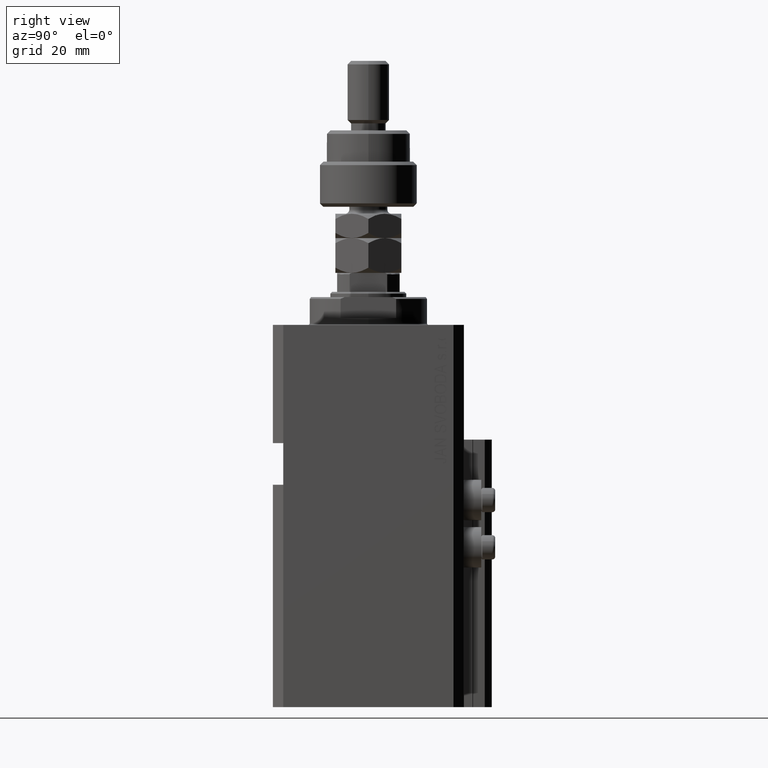
[diagram: clean part render]
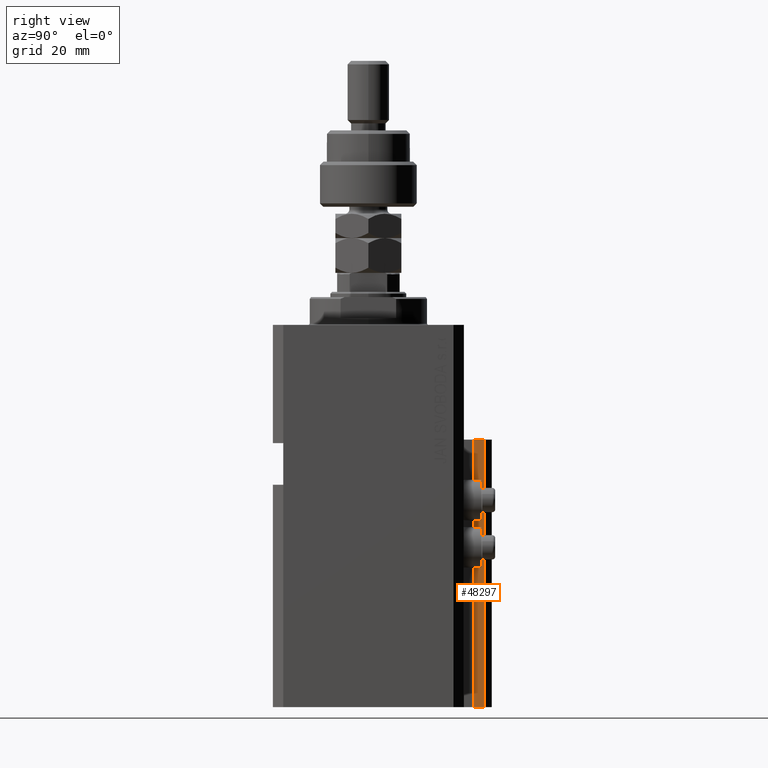
[diagram: same view with one face highlighted and labeled with its STEP entity id]
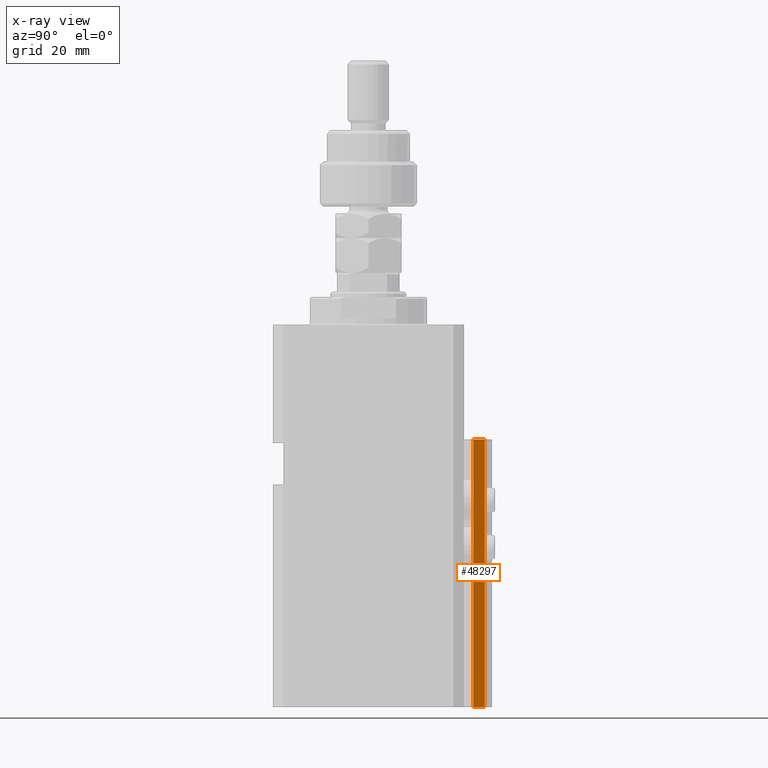
[diagram: x-ray of the same camera — body ghosted, the highlighted face saturated]
A machine part, right view. The second image highlights one B-rep face of the part: STEP entity #48297.
The next image is the same camera in x-ray: the body ghosted, the highlighted face saturated — about 0% of this face is hidden behind the body in this view.
In plain terms, the highlighted planar face has unit normal (1, 0, 0).
Its self-contained STEP definition (entity closure, byte-faithful):
#2779 = ORIENTED_EDGE ( 'NONE', *, *, #19137, .T. ) ;
#4158 = PLANE ( 'NONE',  #23253 ) ;
#4399 = FACE_OUTER_BOUND ( 'NONE', #37048, .T. ) ;
#5267 = DIRECTION ( 'NONE',  ( -5.256737805990334897E-16, 1.000000000000000000, 0.000000000000000000 ) ) ;
#6101 = VERTEX_POINT ( 'NONE', #12063 ) ;
#6625 = LINE ( 'NONE', #42865, #30873 ) ;
#7599 = VERTEX_POINT ( 'NONE', #11189 ) ;
#9350 = DIRECTION ( 'NONE',  ( -5.256737805990334897E-16, 1.000000000000000000, 0.000000000000000000 ) ) ;
#10248 = VECTOR ( 'NONE', #5267, 1000.000000000000000 ) ;
#11189 = CARTESIAN_POINT ( 'NONE',  ( 12.00000000000000000, 33.50000000000001421, -33.00000000000000000 ) ) ;
#11263 = DIRECTION ( 'NONE',  ( 1.000000000000000000, 5.256737805990335883E-16, -0.000000000000000000 ) ) ;
#12063 = CARTESIAN_POINT ( 'NONE',  ( 12.00000000000000000, 33.50000000000001421, -110.0000000000000000 ) ) ;
#13914 = ORIENTED_EDGE ( 'NONE', *, *, #46980, .F. ) ;
#15271 = CARTESIAN_POINT ( 'NONE',  ( 12.00000000000000000, 33.50000000000001421, -110.0000000000000000 ) ) ;
#15811 = CARTESIAN_POINT ( 'NONE',  ( 12.00000000000000178, 30.20000000000002061, -110.0000000000000000 ) ) ;
#16379 = VECTOR ( 'NONE', #9350, 1000.000000000000000 ) ;
#17582 = VERTEX_POINT ( 'NONE', #21185 ) ;
#19137 = EDGE_CURVE ( 'NONE', #6101, #7599, #30985, .T. ) ;
#21185 = CARTESIAN_POINT ( 'NONE',  ( 12.00000000000000178, 30.20000000000002061, -33.00000000000000000 ) ) ;
#23253 = AXIS2_PLACEMENT_3D ( 'NONE', #15811, #11263, #46028 ) ;
#23344 = DIRECTION ( 'NONE',  ( 0.000000000000000000, 0.000000000000000000, 1.000000000000000000 ) ) ;
#26260 = CARTESIAN_POINT ( 'NONE',  ( 12.00000000000000178, 30.20000000000002061, -110.0000000000000000 ) ) ;
#29119 = LINE ( 'NONE', #40005, #10248 ) ;
#30492 = VERTEX_POINT ( 'NONE', #26260 ) ;
#30873 = VECTOR ( 'NONE', #23344, 1000.000000000000000 ) ;
#30985 = LINE ( 'NONE', #15271, #34494 ) ;
#31504 = ORIENTED_EDGE ( 'NONE', *, *, #37078, .T. ) ;
#31675 = EDGE_CURVE ( 'NONE', #30492, #17582, #6625, .T. ) ;
#32697 = CARTESIAN_POINT ( 'NONE',  ( 12.00000000000000178, 30.20000000000002061, -110.0000000000000000 ) ) ;
#34494 = VECTOR ( 'NONE', #46464, 1000.000000000000000 ) ;
#37048 = EDGE_LOOP ( 'NONE', ( #13914, #38836, #31504, #2779 ) ) ;
#37078 = EDGE_CURVE ( 'NONE', #30492, #6101, #44366, .T. ) ;
#38836 = ORIENTED_EDGE ( 'NONE', *, *, #31675, .F. ) ;
#40005 = CARTESIAN_POINT ( 'NONE',  ( 12.00000000000000178, 30.20000000000002061, -33.00000000000000000 ) ) ;
#42865 = CARTESIAN_POINT ( 'NONE',  ( 12.00000000000000178, 30.20000000000002061, -110.0000000000000000 ) ) ;
#44366 = LINE ( 'NONE', #32697, #16379 ) ;
#46028 = DIRECTION ( 'NONE',  ( -5.256737805990335883E-16, 1.000000000000000000, 0.000000000000000000 ) ) ;
#46464 = DIRECTION ( 'NONE',  ( 0.000000000000000000, 0.000000000000000000, 1.000000000000000000 ) ) ;
#46980 = EDGE_CURVE ( 'NONE', #17582, #7599, #29119, .T. ) ;
#48297 = ADVANCED_FACE ( 'NONE', ( #4399 ), #4158, .T. ) ;